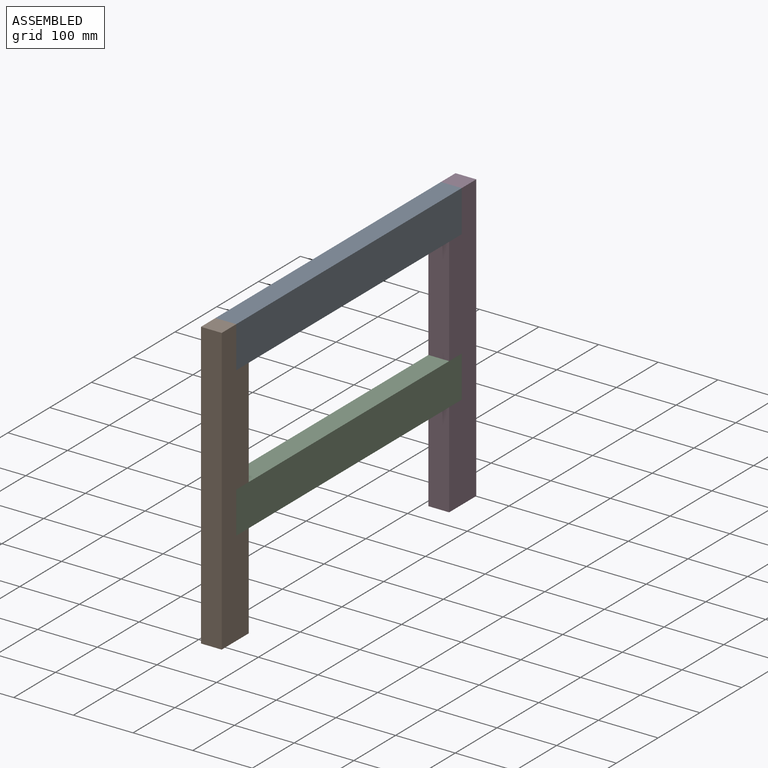
[diagram: assembled view]
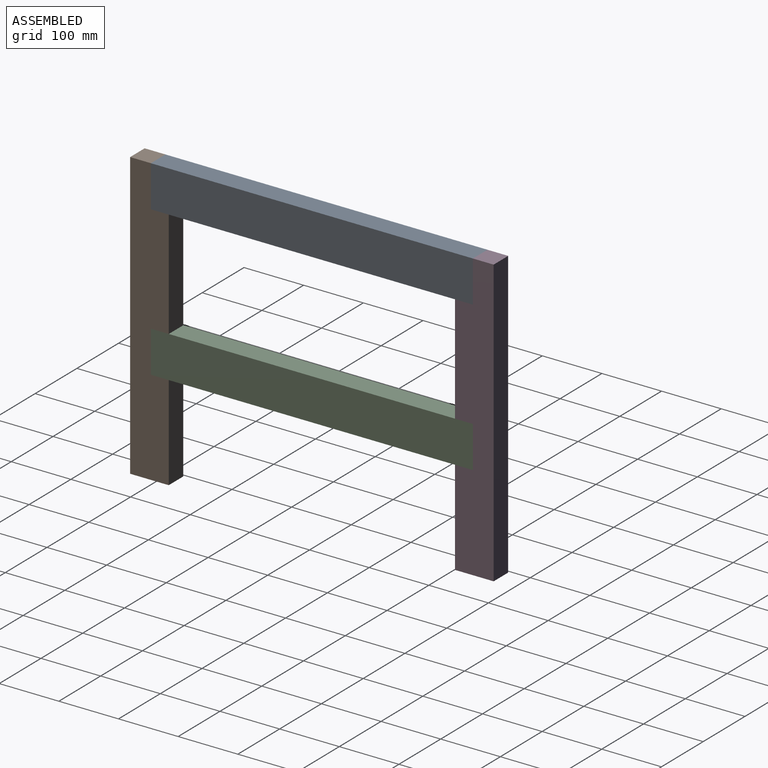
[diagram: assembled view, second angle]
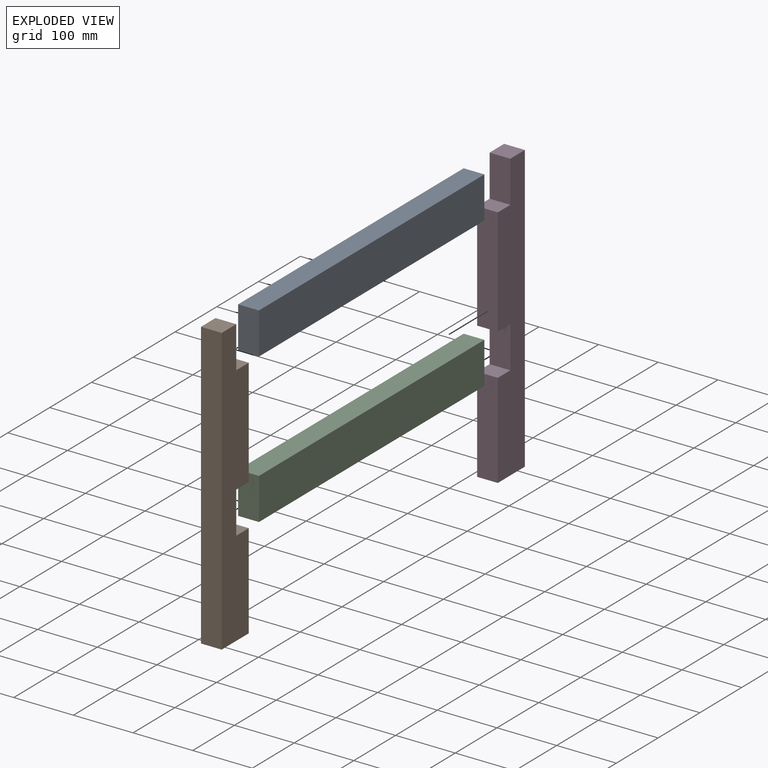
[diagram: exploded view]
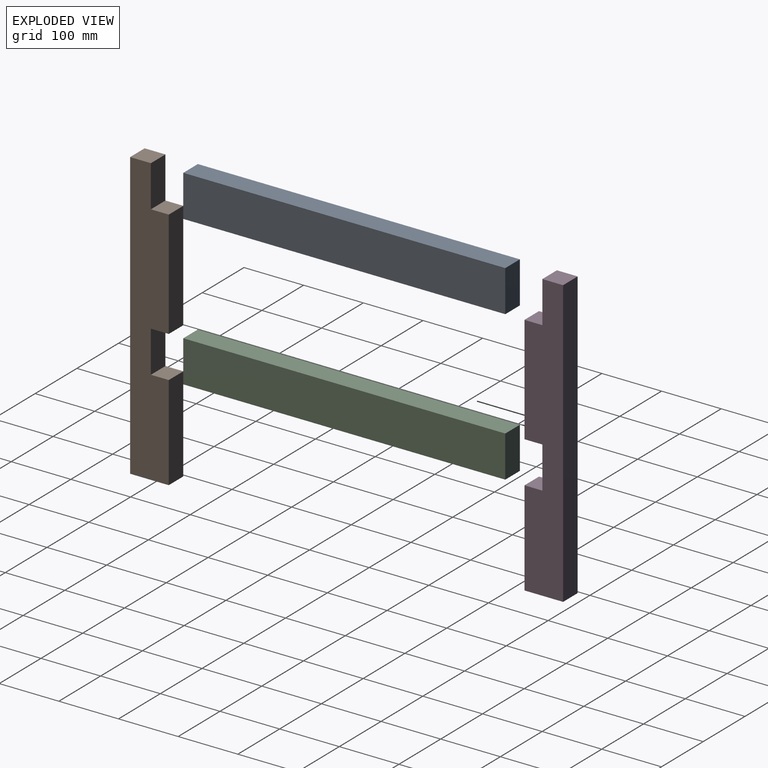
[diagram: exploded view, second angle]
ASSEMBLY  parts=4 mates=3
PART A: 6 faces, bbox 34.8x539.8x69.9 mm
  f0: plane 69.85x34.8mm, normal (0,1,0), area 2430.6mm2, adj f1,f3,f4,f5
  f1: plane 539.75x34.8mm, normal (0,0,1), area 18782.2mm2, adj f0,f2,f4,f5
  f2: plane 69.85x34.8mm, normal (0,-1,0), area 2430.6mm2, adj f1,f3,f4,f5
  f3: plane 539.75x34.8mm, normal (0,0,-1), area 18782.2mm2, adj f0,f2,f4,f5
  f4: plane 539.75x69.85mm, normal (1,0,0), area 37701.5mm2, adj f0,f1,f2,f3
  f5: plane 539.75x69.85mm, normal (-1,0,0), area 37701.5mm2, adj f0,f1,f2,f3
PART B: 12 faces, bbox 34.8x64.8x479.8 mm
  f0: plane 159.28x34.8mm, normal (0,1,0), area 5542.5mm2, adj f1,f7,f8,f9
  f1: plane 64.77x34.8mm, normal (0,0,-1), area 2253.9mm2, adj f0,f6,f7,f8
  f2: plane 180.83x34.8mm, normal (0,1,0), area 6292.5mm2, adj f3,f7,f8,f11
  f3: plane 34.8x29.97mm, normal (0,0,1), area 1043mm2, adj f2,f4,f7,f8
  f4: plane 69.85x34.8mm, normal (0,1,0), area 2430.6mm2, adj f3,f5,f7,f8
  f5: plane 34.8x34.8mm, normal (0,0,1), area 1210.9mm2, adj f4,f6,f7,f8
  f6: plane 479.81x34.8mm, normal (0,-1,0), area 16696.3mm2, adj f1,f5,f7,f8
  f7: plane 479.81x64.77mm, normal (1,0,0), area 26889.9mm2, adj f0,f1,f2,f3,f4,f5,f6,f9
  f8: plane 479.81x64.77mm, normal (-1,0,0), area 26889.9mm2, adj f0,f1,f2,f3,f4,f5,f6,f9
  f9: plane 34.8x29.97mm, normal (0,0,1), area 1043mm2, adj f0,f7,f8,f10
  f10: plane 69.85x34.8mm, normal (0,1,0), area 2430.6mm2, adj f7,f8,f9,f11
  f11: plane 34.8x29.97mm, normal (0,0,-1), area 1043mm2, adj f2,f7,f8,f10
PART C: same geometry as A
PART D: same geometry as B
PLACE A t=(124.24,545.26,574.73)mm
PLACE B t=(124.24,-29.29,164.77)mm
PLACE C t=(124.24,545.26,324.05)mm
PLACE D rot(axis=(0,0,1),180deg) t=(159.04,580.06,164.77)mm
MATE slider C.f2 <-> B.f10  axis (0,-1,0) through (141.64,5.51,358.97)mm
MATE revolute D.f10 <-> C.f0  axis (0,-1,0) through (141.64,545.26,358.97)mm
MATE revolute A.f2 <-> B.f4  axis (0,-1,0) through (141.64,5.51,609.65)mm
